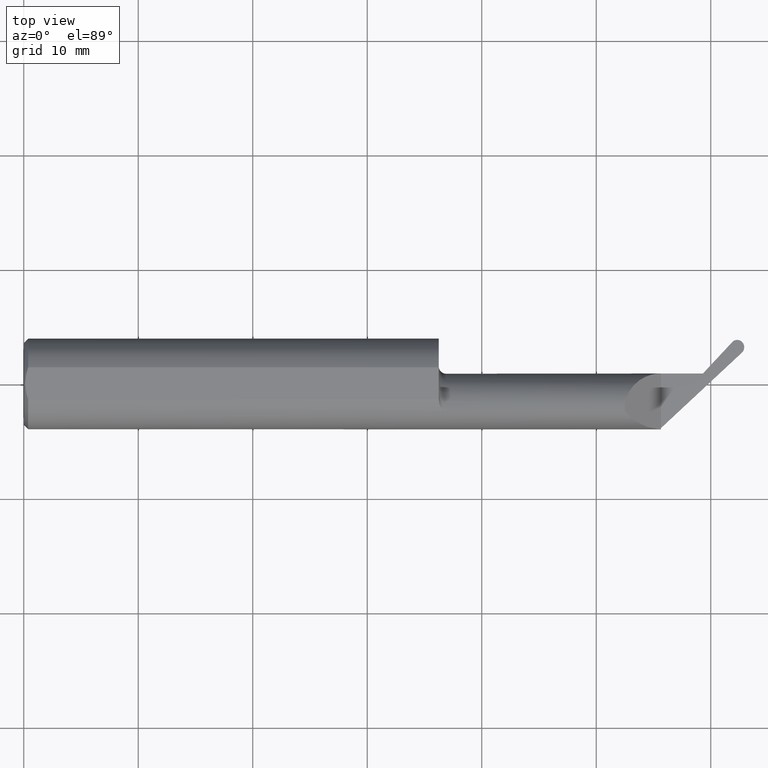
[diagram: clean part render]
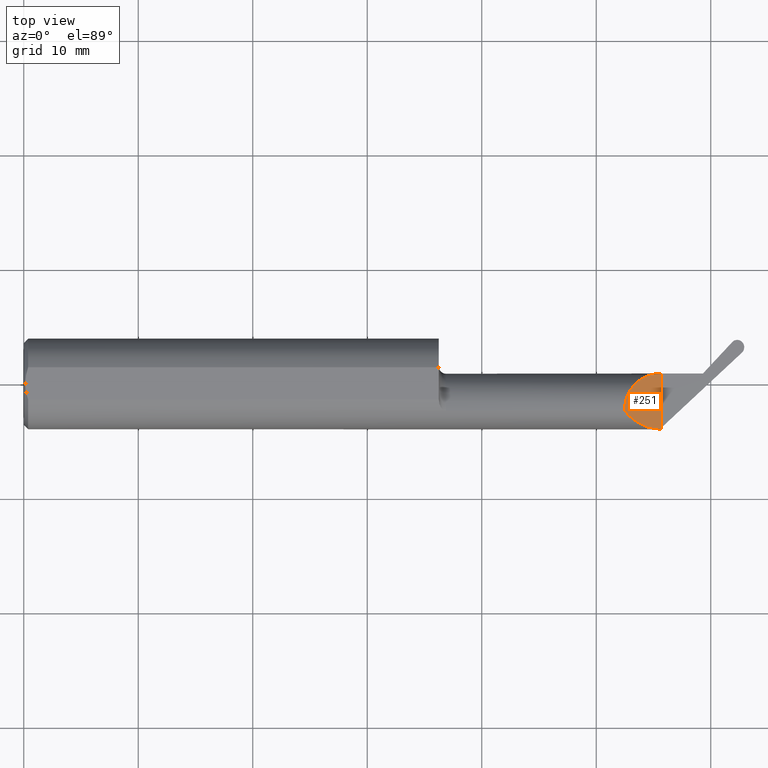
[diagram: same view with one face highlighted and labeled with its STEP entity id]
A machine part, top view. The second image highlights one B-rep face of the part: STEP entity #251.
In plain terms, the highlighted planar face has unit normal (-0.7071, 0, -0.7071).
Its self-contained STEP definition (entity closure, byte-faithful):
#27 = CARTESIAN_POINT ( 'NONE',  ( 2.191000000000000281, 0.2000000000000000111, -4.748720145236707432E-17 ) ) ;
#48 = VERTEX_POINT ( 'NONE', #207 ) ;
#52 = VERTEX_POINT ( 'NONE', #607 ) ;
#53 = AXIS2_PLACEMENT_3D ( 'NONE', #108, #395, #342 ) ;
#68 = CARTESIAN_POINT ( 'NONE',  ( 2.066081329771848996, -0.09360841750841744635, 0.1249186702281519790 ) ) ;
#108 = CARTESIAN_POINT ( 'NONE',  ( 2.189999999999999947, -0.6000000000000000888, 0.001000000000000040787 ) ) ;
#130 = VECTOR ( 'NONE', #383, 39.37007874015748143 ) ;
#133 =( BOUNDED_CURVE ( )  B_SPLINE_CURVE ( 3, ( #296, #695, #312, #68 ),
 .UNSPECIFIED., .F., .T. ) 
 B_SPLINE_CURVE_WITH_KNOTS ( ( 4, 4 ),
 ( 4.712388980384689674, 5.640097190903854418 ),
 .UNSPECIFIED. ) 
 CURVE ( )  GEOMETRIC_REPRESENTATION_ITEM ( )  RATIONAL_B_SPLINE_CURVE ( ( 1.000000000000000000, 0.9295565493311498395, 0.9295565493311498395, 1.000000000000000000 ) ) 
 REPRESENTATION_ITEM ( '' )  );
#134 = LINE ( 'NONE', #413, #247 ) ;
#170 = EDGE_LOOP ( 'NONE', ( #280, #516, #354, #284 ) ) ;
#190 = VERTEX_POINT ( 'NONE', #677 ) ;
#207 = CARTESIAN_POINT ( 'NONE',  ( 2.066081329771848996, -0.09360841750841744635, 0.1249186702281519790 ) ) ;
#242 = CARTESIAN_POINT ( 'NONE',  ( 2.191000000000000281, -0.1560999999999999888, 0.000000000000000000 ) ) ;
#247 = VECTOR ( 'NONE', #636, 39.37007874015748143 ) ;
#251 = ADVANCED_FACE ( 'NONE', ( #737 ), #454, .F. ) ;
#276 = CARTESIAN_POINT ( 'NONE',  ( 2.066081329771848996, -0.09360841750841744635, 0.1249186702281519790 ) ) ;
#280 = ORIENTED_EDGE ( 'NONE', *, *, #492, .F. ) ;
#284 = ORIENTED_EDGE ( 'NONE', *, *, #730, .T. ) ;
#296 = CARTESIAN_POINT ( 'NONE',  ( 2.191000000000000281, -0.1560999999999999888, 0.000000000000000000 ) ) ;
#312 = CARTESIAN_POINT ( 'NONE',  ( 2.096117332916550779, -0.1336908980339253927, 0.09488266708345011180 ) ) ;
#335 = CARTESIAN_POINT ( 'NONE',  ( 2.191000000000000281, 0.03589999999999998748, -4.748720145236707432E-17 ) ) ;
#342 = DIRECTION ( 'NONE',  ( -0.7071067811865451302, 0.000000000000000000, 0.7071067811865499042 ) ) ;
#354 = ORIENTED_EDGE ( 'NONE', *, *, #668, .T. ) ;
#369 = LINE ( 'NONE', #27, #130 ) ;
#383 = DIRECTION ( 'NONE',  ( 0.000000000000000000, 1.000000000000000000, 0.000000000000000000 ) ) ;
#391 = CARTESIAN_POINT ( 'NONE',  ( 2.115664766370900729, 0.03589999999999993197, 0.07533523362909981536 ) ) ;
#395 = DIRECTION ( 'NONE',  ( -0.7071067811865499042, 0.000000000000000000, -0.7071067811865451302 ) ) ;
#413 = CARTESIAN_POINT ( 'NONE',  ( 2.191000000000000281, 0.2000000000000000111, -4.748720145236707432E-17 ) ) ;
#454 = PLANE ( 'NONE',  #53 ) ;
#458 = CARTESIAN_POINT ( 'NONE',  ( 2.063364188281496148, -0.01832219985822297267, 0.1276358117185051599 ) ) ;
#492 = EDGE_CURVE ( 'NONE', #48, #52, #507, .T. ) ;
#507 =( BOUNDED_CURVE ( )  B_SPLINE_CURVE ( 3, ( #276, #458, #391, #335 ),
 .UNSPECIFIED., .F., .T. ) 
 B_SPLINE_CURVE_WITH_KNOTS ( ( 4, 4 ),
 ( 6.247110142813124156, 7.853981633974482790 ),
 .UNSPECIFIED. ) 
 CURVE ( )  GEOMETRIC_REPRESENTATION_ITEM ( )  RATIONAL_B_SPLINE_CURVE ( ( 1.000000000000000000, 0.7961586327312957234, 0.7961586327312957234, 1.000000000000000000 ) ) 
 REPRESENTATION_ITEM ( '' )  );
#516 = ORIENTED_EDGE ( 'NONE', *, *, #623, .F. ) ;
#607 = CARTESIAN_POINT ( 'NONE',  ( 2.191000000000000281, 0.03589999999999998748, -4.748720145236707432E-17 ) ) ;
#623 = EDGE_CURVE ( 'NONE', #632, #48, #133, .T. ) ;
#632 = VERTEX_POINT ( 'NONE', #242 ) ;
#636 = DIRECTION ( 'NONE',  ( 0.000000000000000000, 1.000000000000000000, 0.000000000000000000 ) ) ;
#668 = EDGE_CURVE ( 'NONE', #632, #190, #134, .T. ) ;
#677 = CARTESIAN_POINT ( 'NONE',  ( 2.191000000000000281, -0.1518313150217918961, 0.000000000000000000 ) ) ;
#695 = CARTESIAN_POINT ( 'NONE',  ( 2.140912409421232621, -0.1560999999999999888, 0.05008759057876775028 ) ) ;
#730 = EDGE_CURVE ( 'NONE', #190, #52, #369, .T. ) ;
#737 = FACE_OUTER_BOUND ( 'NONE', #170, .T. ) ;